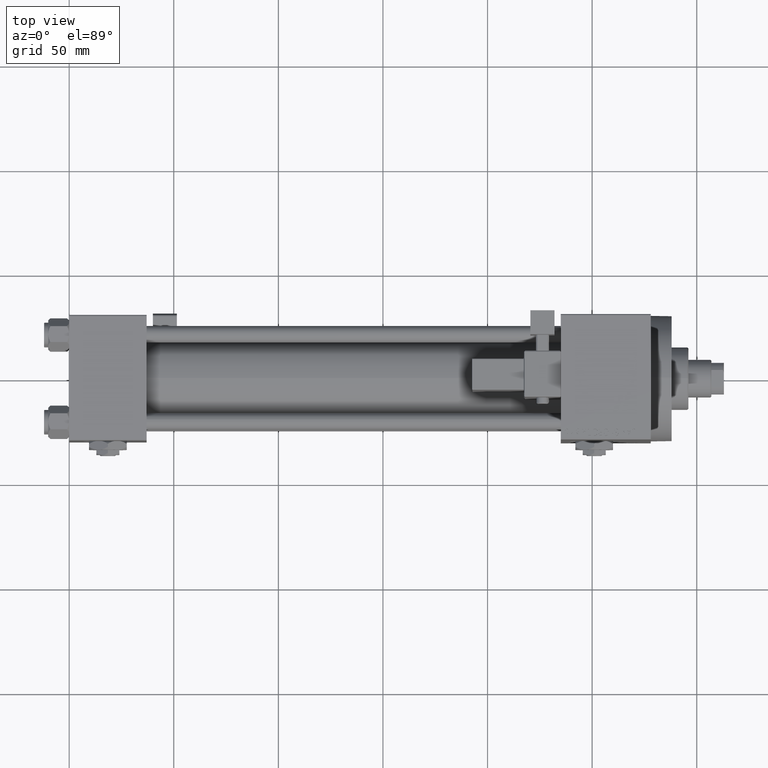
[diagram: clean part render]
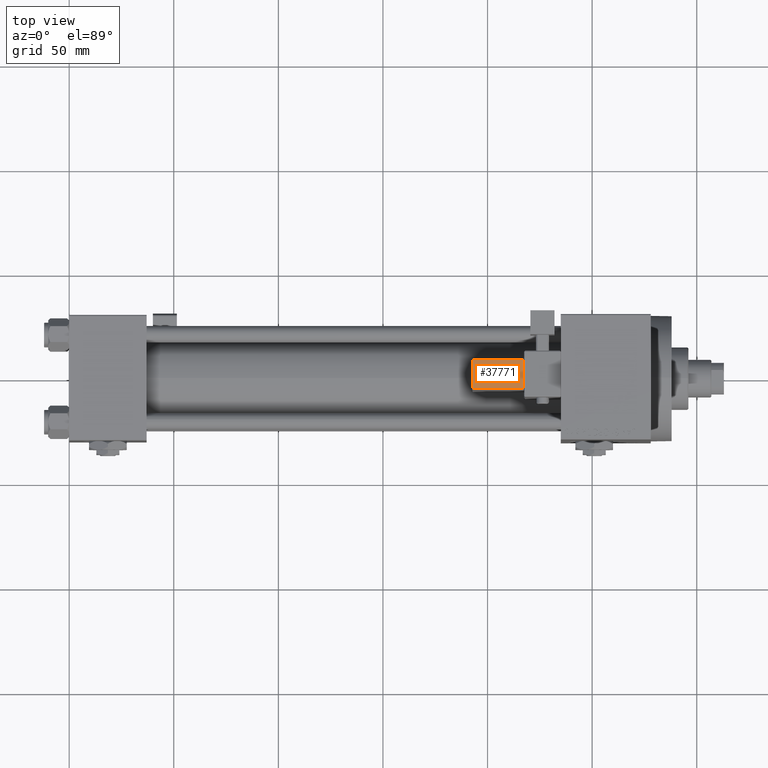
[diagram: same view with one face highlighted and labeled with its STEP entity id]
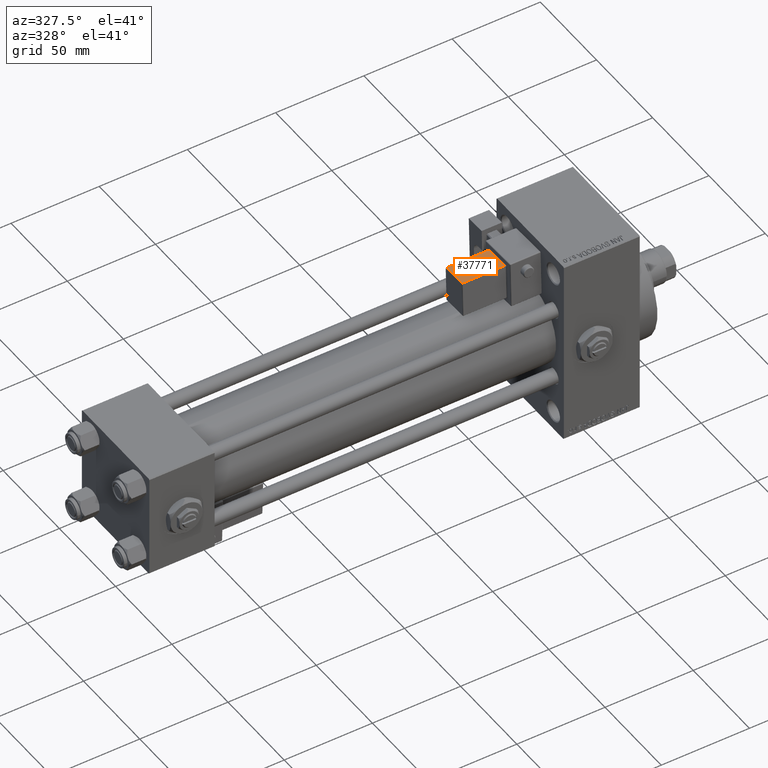
[diagram: same view with one face highlighted and labeled with its STEP entity id]
A machine part, top view. The second image highlights one B-rep face of the part: STEP entity #37771.
A second angle (auxiliary view) of the same face is appended — the face is thin or edge-on in the first view.
In plain terms, the highlighted planar face has unit normal (0, -0.0353, -0.9994).
Its self-contained STEP definition (entity closure, byte-faithful):
#3165 = VERTEX_POINT ( 'NONE', #31988 ) ;
#4337 = VECTOR ( 'NONE', #47769, 1000.000000000000000 ) ;
#5939 = CARTESIAN_POINT ( 'NONE',  ( 33.75000000000000000, -31.74999999999999289, 2.000000000000008438 ) ) ;
#6852 = DIRECTION ( 'NONE',  ( 1.000000000000000000, -0.000000000000000000, 1.334402673828313339E-16 ) ) ;
#7023 = ORIENTED_EDGE ( 'NONE', *, *, #19243, .T. ) ;
#8891 = DIRECTION ( 'NONE',  ( -1.334402673828313339E-16, -1.156482317317871725E-16, 1.000000000000000000 ) ) ;
#13850 = VERTEX_POINT ( 'NONE', #22067 ) ;
#14497 = LINE ( 'NONE', #5939, #43785 ) ;
#14809 = ORIENTED_EDGE ( 'NONE', *, *, #19053, .T. ) ;
#16337 = ORIENTED_EDGE ( 'NONE', *, *, #40945, .T. ) ;
#18859 = VERTEX_POINT ( 'NONE', #29059 ) ;
#19053 = EDGE_CURVE ( 'NONE', #13850, #30187, #31366, .T. ) ;
#19243 = EDGE_CURVE ( 'NONE', #30187, #18859, #34684, .T. ) ;
#20884 = EDGE_CURVE ( 'NONE', #18859, #3165, #34072, .T. ) ;
#21758 = VECTOR ( 'NONE', #34577, 1000.000000000000000 ) ;
#22067 = CARTESIAN_POINT ( 'NONE',  ( 9.250000000000005329, -31.74999999999999289, 2.000000000000005329 ) ) ;
#22068 = DIRECTION ( 'NONE',  ( -1.000000000000000000, 0.000000000000000000, -1.334402673828313339E-16 ) ) ;
#25865 = CARTESIAN_POINT ( 'NONE',  ( 33.75000000000000000, -17.74999999999999645, 2.000000000000010214 ) ) ;
#28398 = FACE_OUTER_BOUND ( 'NONE', #33627, .T. ) ;
#29059 = CARTESIAN_POINT ( 'NONE',  ( 33.25000000000000000, -17.74999999999999645, 2.000000000000010214 ) ) ;
#30187 = VERTEX_POINT ( 'NONE', #45296 ) ;
#30668 = CARTESIAN_POINT ( 'NONE',  ( 33.25000000000000000, -32.24999999999999289, 2.000000000000008438 ) ) ;
#31366 = LINE ( 'NONE', #47257, #4337 ) ;
#31988 = CARTESIAN_POINT ( 'NONE',  ( 33.25000000000000000, -31.74999999999999289, 2.000000000000008438 ) ) ;
#32824 = CARTESIAN_POINT ( 'NONE',  ( 33.75000000000000000, -17.24999999999999289, 2.000000000000010214 ) ) ;
#33627 = EDGE_LOOP ( 'NONE', ( #43961, #16337, #14809, #7023 ) ) ;
#34072 = LINE ( 'NONE', #30668, #21758 ) ;
#34577 = DIRECTION ( 'NONE',  ( 5.473822126268816683E-48, -1.000000000000000000, -1.156482317317871725E-16 ) ) ;
#34684 = LINE ( 'NONE', #25865, #46707 ) ;
#36144 = AXIS2_PLACEMENT_3D ( 'NONE', #32824, #8891, #40634 ) ;
#37771 = ADVANCED_FACE ( 'NONE', ( #28398 ), #44797, .F. ) ;
#40634 = DIRECTION ( 'NONE',  ( 1.000000000000000000, 0.000000000000000000, 1.334402673828313339E-16 ) ) ;
#40945 = EDGE_CURVE ( 'NONE', #3165, #13850, #14497, .T. ) ;
#43785 = VECTOR ( 'NONE', #22068, 1000.000000000000000 ) ;
#43961 = ORIENTED_EDGE ( 'NONE', *, *, #20884, .T. ) ;
#44797 = PLANE ( 'NONE',  #36144 ) ;
#45296 = CARTESIAN_POINT ( 'NONE',  ( 9.250000000000005329, -17.74999999999999645, 2.000000000000006661 ) ) ;
#46707 = VECTOR ( 'NONE', #6852, 1000.000000000000000 ) ;
#47257 = CARTESIAN_POINT ( 'NONE',  ( 9.250000000000005329, -17.24999999999999289, 2.000000000000007105 ) ) ;
#47769 = DIRECTION ( 'NONE',  ( -1.543213096464132036E-32, 1.000000000000000000, 1.156482317317871725E-16 ) ) ;